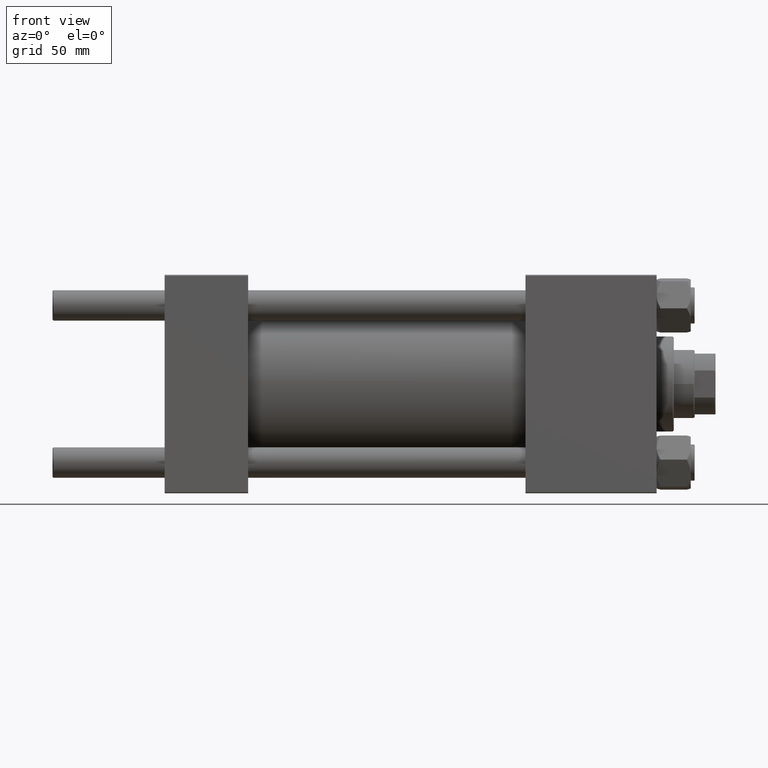
[diagram: clean part render]
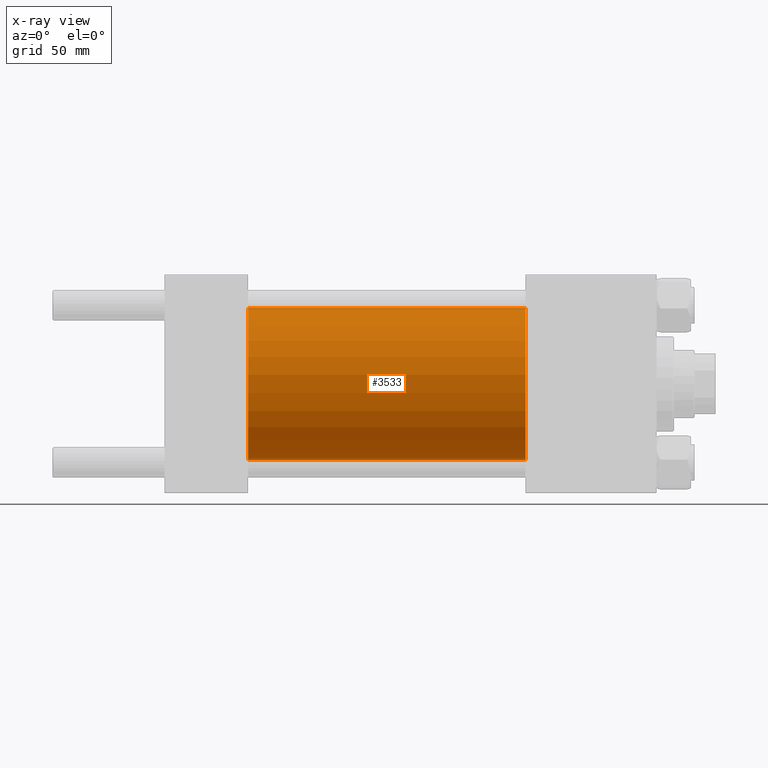
[diagram: x-ray — body ghosted, one internal face saturated and labeled with its STEP entity id]
A machine part, front view, then the same camera in x-ray: the body is ghosted and one INTERNAL B-rep face — a face not visible from any outside direction — is saturated and labeled: STEP entity #3533.
In plain terms, the highlighted cylindrical surface (partial cylindrical patch) has radius 40 mm, axis along (-1, -0, -0).
Its self-contained STEP definition (entity closure, byte-faithful):
#2000 = DIRECTION ( 'NONE',  ( 1.000000000000000000, 0.000000000000000000, 0.000000000000000000 ) ) ;
#2344 = ORIENTED_EDGE ( 'NONE', *, *, #31803, .T. ) ;
#2978 = EDGE_LOOP ( 'NONE', ( #30142, #2344, #40636, #30159 ) ) ;
#3533 = ADVANCED_FACE ( 'NONE', ( #7405 ), #22943, .F. ) ;
#3601 = CARTESIAN_POINT ( 'NONE',  ( 44.00000000000000000, 4.898587196589413026E-15, -40.00000000000000000 ) ) ;
#3921 = CARTESIAN_POINT ( 'NONE',  ( 44.00000000000000000, 0.000000000000000000, 40.00000000000000000 ) ) ;
#4362 = EDGE_CURVE ( 'NONE', #39774, #46786, #37043, .T. ) ;
#5074 = CARTESIAN_POINT ( 'NONE',  ( 190.0000000000000000, 0.000000000000000000, 0.000000000000000000 ) ) ;
#5322 = VECTOR ( 'NONE', #14000, 1000.000000000000000 ) ;
#6865 = LINE ( 'NONE', #18069, #5322 ) ;
#7405 = FACE_OUTER_BOUND ( 'NONE', #2978, .T. ) ;
#8058 = CARTESIAN_POINT ( 'NONE',  ( 190.0000000000000000, 4.898587196589413026E-15, -40.00000000000000000 ) ) ;
#12525 = AXIS2_PLACEMENT_3D ( 'NONE', #29918, #45431, #48748 ) ;
#13484 = VERTEX_POINT ( 'NONE', #3601 ) ;
#14000 = DIRECTION ( 'NONE',  ( -1.000000000000000000, -0.000000000000000000, -0.000000000000000000 ) ) ;
#14342 = EDGE_CURVE ( 'NONE', #39774, #47303, #48803, .T. ) ;
#17287 = DIRECTION ( 'NONE',  ( 0.000000000000000000, 0.000000000000000000, -1.000000000000000000 ) ) ;
#18069 = CARTESIAN_POINT ( 'NONE',  ( 190.0000000000000000, 4.898587196589413026E-15, -40.00000000000000000 ) ) ;
#19112 = CARTESIAN_POINT ( 'NONE',  ( 190.0000000000000000, 0.000000000000000000, 0.000000000000000000 ) ) ;
#22943 = CYLINDRICAL_SURFACE ( 'NONE', #35650, 40.00000000000000000 ) ;
#23097 = CARTESIAN_POINT ( 'NONE',  ( 190.0000000000000000, 0.000000000000000000, 40.00000000000000000 ) ) ;
#27482 = EDGE_CURVE ( 'NONE', #46786, #13484, #41818, .T. ) ;
#29918 = CARTESIAN_POINT ( 'NONE',  ( 44.00000000000000000, 0.000000000000000000, 0.000000000000000000 ) ) ;
#30105 = AXIS2_PLACEMENT_3D ( 'NONE', #5074, #2000, #17287 ) ;
#30142 = ORIENTED_EDGE ( 'NONE', *, *, #14342, .T. ) ;
#30159 = ORIENTED_EDGE ( 'NONE', *, *, #4362, .F. ) ;
#31803 = EDGE_CURVE ( 'NONE', #47303, #13484, #6865, .T. ) ;
#34665 = DIRECTION ( 'NONE',  ( -1.000000000000000000, -0.000000000000000000, -0.000000000000000000 ) ) ;
#35650 = AXIS2_PLACEMENT_3D ( 'NONE', #19112, #34665, #50173 ) ;
#37043 = LINE ( 'NONE', #49227, #48661 ) ;
#39774 = VERTEX_POINT ( 'NONE', #23097 ) ;
#40636 = ORIENTED_EDGE ( 'NONE', *, *, #27482, .F. ) ;
#41818 = CIRCLE ( 'NONE', #12525, 40.00000000000000000 ) ;
#45431 = DIRECTION ( 'NONE',  ( 1.000000000000000000, 0.000000000000000000, 0.000000000000000000 ) ) ;
#46786 = VERTEX_POINT ( 'NONE', #3921 ) ;
#47303 = VERTEX_POINT ( 'NONE', #8058 ) ;
#48661 = VECTOR ( 'NONE', #48982, 1000.000000000000000 ) ;
#48748 = DIRECTION ( 'NONE',  ( 0.000000000000000000, 0.000000000000000000, -1.000000000000000000 ) ) ;
#48803 = CIRCLE ( 'NONE', #30105, 40.00000000000000000 ) ;
#48982 = DIRECTION ( 'NONE',  ( -1.000000000000000000, -0.000000000000000000, -0.000000000000000000 ) ) ;
#49227 = CARTESIAN_POINT ( 'NONE',  ( 190.0000000000000000, 0.000000000000000000, 40.00000000000000000 ) ) ;
#50173 = DIRECTION ( 'NONE',  ( 0.000000000000000000, 0.000000000000000000, 1.000000000000000000 ) ) ;